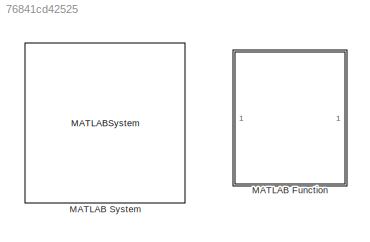
MODEL slx_76841cd42525
KIND model
CONFIG AbsTol = auto
CONFIG EnableMultiTasking = off
CONFIG FixedStep = auto
CONFIG MaxStep = auto
CONFIG MinStep = auto
CONFIG RelTol = 1e-3
CONFIG SampleTimeConstraint = Unconstrained
CONFIG Solver = VariableStepAuto
CONFIG SolverName = VariableStepAuto
CONFIG StartTime = 0.0
CONFIG StopTime = 10.0
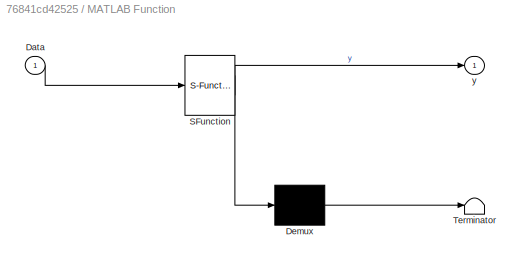
BLOCK [SubSystem] MATLAB Function
  ErrorFcn = Stateflow.Translate.translate
  PermitHierarchicalResolution = ExplicitOnly
  Ports = [1, 1]
  RequestExecContextInheritance = off
  SFBlockType = MATLAB Function
  TreatAsAtomicUnit = on
  Variant = off
BLOCK [Demux] MATLAB Function/ Demux 
  Outputs = 1
  Ports = [1, 1]
BLOCK [S-Function] MATLAB Function/ SFunction 
  EnableBusSupport = off
  FunctionName = sf_sfun
  PortCounts = [1 2]
  Ports = [1, 2]
  SFcnIsStateOwnerBlock = off
  SFunctionDeploymentMode = off
  Tag = Stateflow S-Function fff 2
BLOCK [Terminator] MATLAB Function/ Terminator 
BLOCK [Inport] MATLAB Function/Data
  IconDisplay = Port number
BLOCK [Outport] MATLAB Function/y
  IconDisplay = Port number
BLOCK [MATLABSystem] MATLAB System
  ChannelBandwidth = CBW20
  MaskDisplay = disp('HTFE');\nport_label('input',1,'x');\nport_label('output',1,'validPacket');\nport_label('output',2,'cfgNonHT');\nport_label('output',3,'rxNonHTData');\nport_label('output',4,'chanEst');\nport_label('output',5,'noiseVarEst');\nport_label('output',6,'data');\nport_label('output',7,'cfo_est');\nport_label('output',8,'channel_est');
  MaskType = HTFE
  OFDMSymbolOffset = .75
  Ports = [1, 8]
  SimulateUsing = Code generation
  SymbolTimingThreshold = 1
  System = HTFE
CHART MATLAB Function states=1 transitions=1
  STATE_LABEL 'eML_blk_kernel()'
  STATE_LABEL "SCRIPT:\nfunction y = Channel_CFO_Estimation(Data)\n        \n    % Setup Front-End Packet Synchronizer\nWLANFrontEnd = HTFE('ChannelBandwidth', 'CBW20');  \n\n\n\n\ny = u;"
